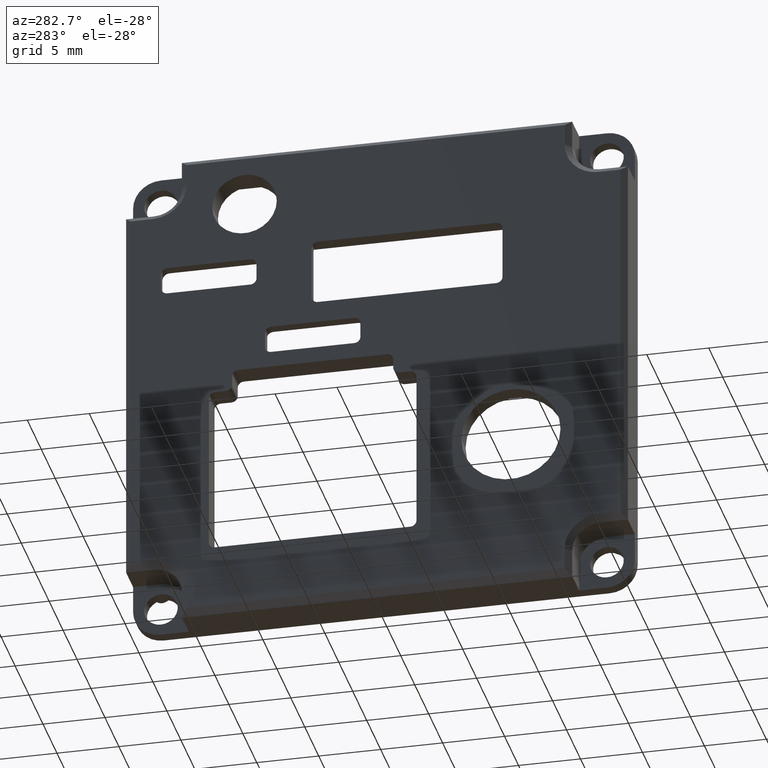
[diagram: clean part render]
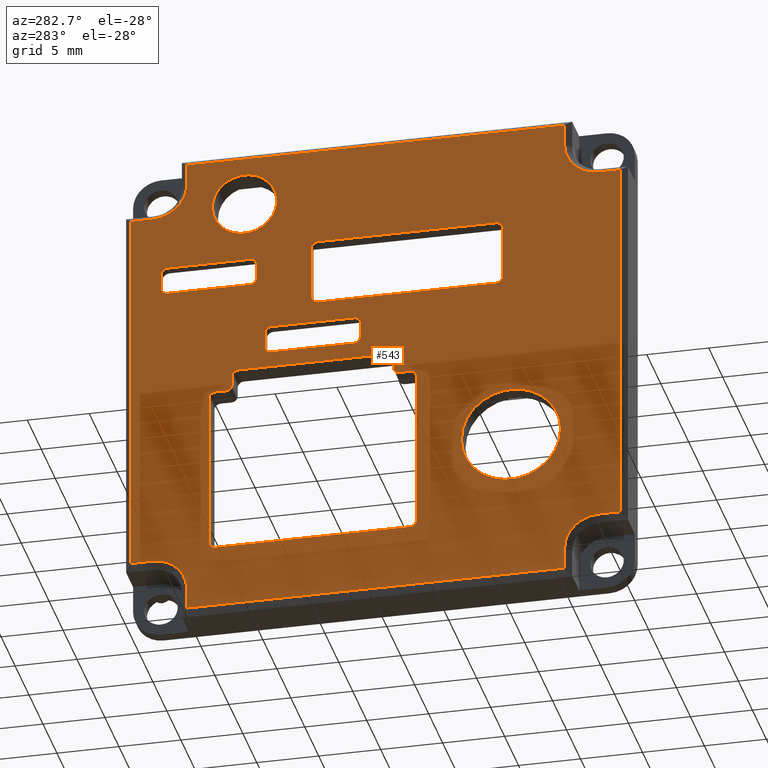
[diagram: same view with one face highlighted and labeled with its STEP entity id]
A machine part, auxiliary view. The second image highlights one B-rep face of the part: STEP entity #543.
In plain terms, the highlighted planar face has unit normal (-1, 0, 0).
Its self-contained STEP definition (entity closure, byte-faithful):
#543=ADVANCED_FACE('',(#1393,#1394,#1395,#1396,#1397,#1398,#968),#4072,.T.);
#968=FACE_OUTER_BOUND('',#1423,.F.);
#1393=FACE_BOUND('',#1417,.F.);
#1394=FACE_BOUND('',#1418,.F.);
#1395=FACE_BOUND('',#1419,.F.);
#1396=FACE_BOUND('',#1420,.F.);
#1397=FACE_BOUND('',#1421,.F.);
#1398=FACE_BOUND('',#1422,.F.);
#1417=EDGE_LOOP('',(#1866,#1867));
#1418=EDGE_LOOP('',(#1868,#1869,#1870,#1871,#1872,#1873,#1874,#1875));
#1419=EDGE_LOOP('',(#1876,#1877,#1878,#1879,#1880,#1881,#1882,#1883));
#1420=EDGE_LOOP('',(#1884,#1885,#1886,#1887,#1888,#1889,#1890,#1891));
#1421=EDGE_LOOP('',(#1892,#1893,#1894,#1895,#1896,#1897,#1898,#1899,#1900,
#1901,#1902,#1903,#1904,#1905,#1906,#1907));
#1422=EDGE_LOOP('',(#1908,#1909));
#1423=EDGE_LOOP('',(#1910,#1911,#1912,#1913,#1914,#1915,#1916,#1917,#1918,
#1919,#1920,#1921,#1922,#1923,#1924,#1925,#1926,#1927,#1928,#1929));
#1866=ORIENTED_EDGE('',*,*,#6767,.T.);
#1867=ORIENTED_EDGE('',*,*,#6766,.T.);
#1868=ORIENTED_EDGE('',*,*,#6789,.T.);
#1869=ORIENTED_EDGE('',*,*,#6790,.T.);
#1870=ORIENTED_EDGE('',*,*,#6791,.T.);
#1871=ORIENTED_EDGE('',*,*,#6792,.T.);
#1872=ORIENTED_EDGE('',*,*,#6793,.T.);
#1873=ORIENTED_EDGE('',*,*,#6794,.T.);
#1874=ORIENTED_EDGE('',*,*,#6795,.T.);
#1875=ORIENTED_EDGE('',*,*,#6788,.T.);
#1876=ORIENTED_EDGE('',*,*,#6845,.T.);
#1877=ORIENTED_EDGE('',*,*,#6846,.T.);
#1878=ORIENTED_EDGE('',*,*,#6847,.T.);
#1879=ORIENTED_EDGE('',*,*,#6848,.T.);
#1880=ORIENTED_EDGE('',*,*,#6849,.T.);
#1881=ORIENTED_EDGE('',*,*,#6850,.T.);
#1882=ORIENTED_EDGE('',*,*,#6851,.T.);
#1883=ORIENTED_EDGE('',*,*,#6844,.T.);
#1884=ORIENTED_EDGE('',*,*,#6869,.T.);
#1885=ORIENTED_EDGE('',*,*,#6870,.T.);
#1886=ORIENTED_EDGE('',*,*,#6871,.T.);
#1887=ORIENTED_EDGE('',*,*,#6872,.T.);
#1888=ORIENTED_EDGE('',*,*,#6873,.T.);
#1889=ORIENTED_EDGE('',*,*,#6874,.T.);
#1890=ORIENTED_EDGE('',*,*,#6875,.T.);
#1891=ORIENTED_EDGE('',*,*,#6868,.T.);
#1892=ORIENTED_EDGE('',*,*,#6814,.T.);
#1893=ORIENTED_EDGE('',*,*,#6815,.T.);
#1894=ORIENTED_EDGE('',*,*,#6816,.T.);
#1895=ORIENTED_EDGE('',*,*,#6817,.T.);
#1896=ORIENTED_EDGE('',*,*,#6818,.T.);
#1897=ORIENTED_EDGE('',*,*,#6819,.F.);
#1898=ORIENTED_EDGE('',*,*,#6820,.T.);
#1899=ORIENTED_EDGE('',*,*,#6821,.T.);
#1900=ORIENTED_EDGE('',*,*,#6822,.T.);
#1901=ORIENTED_EDGE('',*,*,#6823,.T.);
#1902=ORIENTED_EDGE('',*,*,#6824,.T.);
#1903=ORIENTED_EDGE('',*,*,#6825,.F.);
#1904=ORIENTED_EDGE('',*,*,#6826,.T.);
#1905=ORIENTED_EDGE('',*,*,#6827,.T.);
#1906=ORIENTED_EDGE('',*,*,#6812,.T.);
#1907=ORIENTED_EDGE('',*,*,#6813,.T.);
#1908=ORIENTED_EDGE('',*,*,#6771,.T.);
#1909=ORIENTED_EDGE('',*,*,#6770,.T.);
#1910=ORIENTED_EDGE('',*,*,#6706,.T.);
#1911=ORIENTED_EDGE('',*,*,#6708,.F.);
#1912=ORIENTED_EDGE('',*,*,#6709,.F.);
#1913=ORIENTED_EDGE('',*,*,#6711,.F.);
#1914=ORIENTED_EDGE('',*,*,#6713,.T.);
#1915=ORIENTED_EDGE('',*,*,#6712,.T.);
#1916=ORIENTED_EDGE('',*,*,#6714,.F.);
#1917=ORIENTED_EDGE('',*,*,#6715,.F.);
#1918=ORIENTED_EDGE('',*,*,#6717,.F.);
#1919=ORIENTED_EDGE('',*,*,#6719,.T.);
#1920=ORIENTED_EDGE('',*,*,#6718,.T.);
#1921=ORIENTED_EDGE('',*,*,#6720,.F.);
#1922=ORIENTED_EDGE('',*,*,#6721,.F.);
#1923=ORIENTED_EDGE('',*,*,#6723,.F.);
#1924=ORIENTED_EDGE('',*,*,#6725,.T.);
#1925=ORIENTED_EDGE('',*,*,#6724,.T.);
#1926=ORIENTED_EDGE('',*,*,#6726,.F.);
#1927=ORIENTED_EDGE('',*,*,#6727,.F.);
#1928=ORIENTED_EDGE('',*,*,#6729,.F.);
#1929=ORIENTED_EDGE('',*,*,#6707,.T.);
#4072=PLANE('',#10307);
#6306=CIRCLE('',#9989,2.75);
#6307=CIRCLE('',#9990,2.75);
#6308=CIRCLE('',#9991,2.75);
#6309=CIRCLE('',#9992,2.75);
#6310=CIRCLE('',#9993,2.75);
#6311=CIRCLE('',#9994,2.75);
#6312=CIRCLE('',#9995,2.75);
#6313=CIRCLE('',#9996,2.75);
#6322=CIRCLE('',#10005,4.);
#6323=CIRCLE('',#10006,4.);
#6326=CIRCLE('',#10009,2.60000000000002);
#6327=CIRCLE('',#10010,2.60000000000002);
#6336=CIRCLE('',#10019,0.5);
#6337=CIRCLE('',#10020,0.5);
#6338=CIRCLE('',#10021,0.5);
#6339=CIRCLE('',#10022,0.5);
#6348=CIRCLE('',#10031,0.5);
#6349=CIRCLE('',#10032,0.5);
#6350=CIRCLE('',#10033,0.5);
#6351=CIRCLE('',#10034,0.5);
#6352=CIRCLE('',#10035,0.5);
#6353=CIRCLE('',#10036,0.5);
#6354=CIRCLE('',#10037,0.5);
#6355=CIRCLE('',#10038,0.5);
#6364=CIRCLE('',#10047,0.5);
#6365=CIRCLE('',#10048,0.5);
#6366=CIRCLE('',#10049,0.5);
#6367=CIRCLE('',#10050,0.5);
#6376=CIRCLE('',#10059,0.5);
#6377=CIRCLE('',#10060,0.5);
#6378=CIRCLE('',#10061,0.5);
#6379=CIRCLE('',#10062,0.5);
#6706=EDGE_CURVE('',#9854,#9853,#6306,.T.);
#6707=EDGE_CURVE('',#9852,#9854,#6307,.T.);
#6708=EDGE_CURVE('',#9851,#9853,#7788,.T.);
#6709=EDGE_CURVE('',#9850,#9851,#7789,.T.);
#6711=EDGE_CURVE('',#9847,#9850,#7791,.T.);
#6712=EDGE_CURVE('',#9846,#9845,#6308,.T.);
#6713=EDGE_CURVE('',#9847,#9846,#6309,.T.);
#6714=EDGE_CURVE('',#9844,#9845,#7792,.T.);
#6715=EDGE_CURVE('',#9843,#9844,#7793,.T.);
#6717=EDGE_CURVE('',#9840,#9843,#7795,.T.);
#6718=EDGE_CURVE('',#9839,#9838,#6310,.T.);
#6719=EDGE_CURVE('',#9840,#9839,#6311,.T.);
#6720=EDGE_CURVE('',#9837,#9838,#7796,.T.);
#6721=EDGE_CURVE('',#9836,#9837,#7797,.T.);
#6723=EDGE_CURVE('',#9833,#9836,#7799,.T.);
#6724=EDGE_CURVE('',#9832,#9831,#6312,.T.);
#6725=EDGE_CURVE('',#9833,#9832,#6313,.T.);
#6726=EDGE_CURVE('',#9830,#9831,#7800,.T.);
#6727=EDGE_CURVE('',#9829,#9830,#7801,.T.);
#6729=EDGE_CURVE('',#9852,#9829,#7803,.T.);
#6766=EDGE_CURVE('',#9792,#9791,#6322,.T.);
#6767=EDGE_CURVE('',#9791,#9792,#6323,.T.);
#6770=EDGE_CURVE('',#9788,#9787,#6326,.T.);
#6771=EDGE_CURVE('',#9787,#9788,#6327,.T.);
#6788=EDGE_CURVE('',#9770,#9769,#6336,.T.);
#6789=EDGE_CURVE('',#9769,#9768,#7840,.T.);
#6790=EDGE_CURVE('',#9768,#9767,#6337,.T.);
#6791=EDGE_CURVE('',#9767,#9766,#7841,.T.);
#6792=EDGE_CURVE('',#9766,#9765,#6338,.T.);
#6793=EDGE_CURVE('',#9765,#9764,#7842,.T.);
#6794=EDGE_CURVE('',#9764,#9763,#6339,.T.);
#6795=EDGE_CURVE('',#9763,#9770,#7843,.T.);
#6812=EDGE_CURVE('',#9746,#9745,#7852,.T.);
#6813=EDGE_CURVE('',#9745,#9744,#6348,.T.);
#6814=EDGE_CURVE('',#9744,#9743,#7853,.T.);
#6815=EDGE_CURVE('',#9743,#9742,#6349,.T.);
#6816=EDGE_CURVE('',#9742,#9741,#7854,.T.);
#6817=EDGE_CURVE('',#9741,#9740,#6350,.T.);
#6818=EDGE_CURVE('',#9740,#9739,#7855,.T.);
#6819=EDGE_CURVE('',#9738,#9739,#6351,.T.);
#6820=EDGE_CURVE('',#9738,#9737,#7856,.T.);
#6821=EDGE_CURVE('',#9737,#9736,#6352,.T.);
#6822=EDGE_CURVE('',#9736,#9735,#7857,.T.);
#6823=EDGE_CURVE('',#9735,#9734,#6353,.T.);
#6824=EDGE_CURVE('',#9734,#9733,#7858,.T.);
#6825=EDGE_CURVE('',#9732,#9733,#6354,.T.);
#6826=EDGE_CURVE('',#9732,#9731,#7859,.T.);
#6827=EDGE_CURVE('',#9731,#9746,#6355,.T.);
#6844=EDGE_CURVE('',#9714,#9713,#6364,.T.);
#6845=EDGE_CURVE('',#9713,#9712,#7868,.T.);
#6846=EDGE_CURVE('',#9712,#9711,#6365,.T.);
#6847=EDGE_CURVE('',#9711,#9710,#7869,.T.);
#6848=EDGE_CURVE('',#9710,#9709,#6366,.T.);
#6849=EDGE_CURVE('',#9709,#9708,#7870,.T.);
#6850=EDGE_CURVE('',#9708,#9707,#6367,.T.);
#6851=EDGE_CURVE('',#9707,#9714,#7871,.T.);
#6868=EDGE_CURVE('',#9692,#9691,#6376,.T.);
#6869=EDGE_CURVE('',#9691,#9690,#7880,.T.);
#6870=EDGE_CURVE('',#9690,#9689,#6377,.T.);
#6871=EDGE_CURVE('',#9689,#9688,#7881,.T.);
#6872=EDGE_CURVE('',#9688,#9687,#6378,.T.);
#6873=EDGE_CURVE('',#9687,#9686,#7882,.T.);
#6874=EDGE_CURVE('',#9686,#9685,#6379,.T.);
#6875=EDGE_CURVE('',#9685,#9692,#7883,.T.);
#7788=LINE('',#13906,#8552);
#7789=LINE('',#13907,#8553);
#7791=LINE('',#13909,#8555);
#7792=LINE('',#13912,#8556);
#7793=LINE('',#13913,#8557);
#7795=LINE('',#13915,#8559);
#7796=LINE('',#13918,#8560);
#7797=LINE('',#13919,#8561);
#7799=LINE('',#13921,#8563);
#7800=LINE('',#13924,#8564);
#7801=LINE('',#13925,#8565);
#7803=LINE('',#13927,#8567);
#7840=LINE('',#13987,#8604);
#7841=LINE('',#13989,#8605);
#7842=LINE('',#13991,#8606);
#7843=LINE('',#13993,#8607);
#7852=LINE('',#14010,#8616);
#7853=LINE('',#14012,#8617);
#7854=LINE('',#14014,#8618);
#7855=LINE('',#14016,#8619);
#7856=LINE('',#14018,#8620);
#7857=LINE('',#14020,#8621);
#7858=LINE('',#14022,#8622);
#7859=LINE('',#14024,#8623);
#7868=LINE('',#14043,#8632);
#7869=LINE('',#14045,#8633);
#7870=LINE('',#14047,#8634);
#7871=LINE('',#14049,#8635);
#7880=LINE('',#14067,#8644);
#7881=LINE('',#14069,#8645);
#7882=LINE('',#14071,#8646);
#7883=LINE('',#14073,#8647);
#8552=VECTOR('',#10803,1.74999985754855);
#8553=VECTOR('',#10804,30.499999918845);
#8555=VECTOR('',#10806,1.75000001817986);
#8556=VECTOR('',#10811,1.74999636763292);
#8557=VECTOR('',#10812,30.4999962539143);
#8559=VECTOR('',#10814,1.74999998266961);
#8560=VECTOR('',#10819,1.75000006298982);
#8561=VECTOR('',#10820,30.5000001242829);
#8563=VECTOR('',#10822,1.75000001817964);
#8564=VECTOR('',#10827,1.74999636762564);
#8565=VECTOR('',#10828,30.4999962539125);
#8567=VECTOR('',#10830,1.74999998266912);
#8604=VECTOR('',#10913,1.24999999999917);
#8605=VECTOR('',#10916,6.7000000000008);
#8606=VECTOR('',#10919,1.25000000000009);
#8607=VECTOR('',#10922,6.69999999998796);
#8616=VECTOR('',#10947,12.849999999998);
#8617=VECTOR('',#10950,15.7499690119951);
#8618=VECTOR('',#10953,12.8499999999941);
#8619=VECTOR('',#10956,0.874984505972094);
#8620=VECTOR('',#10959,0.750000000022737);
#8621=VECTOR('',#10962,12.0000000000169);
#8622=VECTOR('',#10965,0.749999999999879);
#8623=VECTOR('',#10968,0.874984506017285);
#8632=VECTOR('',#10997,1.24999999999914);
#8633=VECTOR('',#11000,6.70000000000081);
#8634=VECTOR('',#11003,1.25000000000008);
#8635=VECTOR('',#11006,6.69999999998794);
#8644=VECTOR('',#11033,4.38000000000955);
#8645=VECTOR('',#11036,14.400000000008);
#8646=VECTOR('',#11039,4.38000000000477);
#8647=VECTOR('',#11042,14.3999999999942);
#9685=VERTEX_POINT('',#13424);
#9686=VERTEX_POINT('',#13425);
#9687=VERTEX_POINT('',#13426);
#9688=VERTEX_POINT('',#13427);
#9689=VERTEX_POINT('',#13428);
#9690=VERTEX_POINT('',#13429);
#9691=VERTEX_POINT('',#13430);
#9692=VERTEX_POINT('',#13431);
#9707=VERTEX_POINT('',#13446);
#9708=VERTEX_POINT('',#13447);
#9709=VERTEX_POINT('',#13448);
#9710=VERTEX_POINT('',#13449);
#9711=VERTEX_POINT('',#13450);
#9712=VERTEX_POINT('',#13451);
#9713=VERTEX_POINT('',#13452);
#9714=VERTEX_POINT('',#13453);
#9731=VERTEX_POINT('',#13470);
#9732=VERTEX_POINT('',#13471);
#9733=VERTEX_POINT('',#13472);
#9734=VERTEX_POINT('',#13473);
#9735=VERTEX_POINT('',#13474);
#9736=VERTEX_POINT('',#13475);
#9737=VERTEX_POINT('',#13476);
#9738=VERTEX_POINT('',#13477);
#9739=VERTEX_POINT('',#13478);
#9740=VERTEX_POINT('',#13479);
#9741=VERTEX_POINT('',#13480);
#9742=VERTEX_POINT('',#13481);
#9743=VERTEX_POINT('',#13482);
#9744=VERTEX_POINT('',#13483);
#9745=VERTEX_POINT('',#13484);
#9746=VERTEX_POINT('',#13485);
#9763=VERTEX_POINT('',#13502);
#9764=VERTEX_POINT('',#13503);
#9765=VERTEX_POINT('',#13504);
#9766=VERTEX_POINT('',#13505);
#9767=VERTEX_POINT('',#13506);
#9768=VERTEX_POINT('',#13507);
#9769=VERTEX_POINT('',#13508);
#9770=VERTEX_POINT('',#13509);
#9787=VERTEX_POINT('',#13526);
#9788=VERTEX_POINT('',#13527);
#9791=VERTEX_POINT('',#13530);
#9792=VERTEX_POINT('',#13531);
#9829=VERTEX_POINT('',#13568);
#9830=VERTEX_POINT('',#13569);
#9831=VERTEX_POINT('',#13570);
#9832=VERTEX_POINT('',#13571);
#9833=VERTEX_POINT('',#13572);
#9836=VERTEX_POINT('',#13575);
#9837=VERTEX_POINT('',#13576);
#9838=VERTEX_POINT('',#13577);
#9839=VERTEX_POINT('',#13578);
#9840=VERTEX_POINT('',#13579);
#9843=VERTEX_POINT('',#13582);
#9844=VERTEX_POINT('',#13583);
#9845=VERTEX_POINT('',#13584);
#9846=VERTEX_POINT('',#13585);
#9847=VERTEX_POINT('',#13586);
#9850=VERTEX_POINT('',#13589);
#9851=VERTEX_POINT('',#13590);
#9852=VERTEX_POINT('',#13591);
#9853=VERTEX_POINT('',#13592);
#9854=VERTEX_POINT('',#13593);
#9989=AXIS2_PLACEMENT_3D('',#13904,#10799,#10800);
#9990=AXIS2_PLACEMENT_3D('',#13905,#10801,#10802);
#9991=AXIS2_PLACEMENT_3D('',#13910,#10807,#10808);
#9992=AXIS2_PLACEMENT_3D('',#13911,#10809,#10810);
#9993=AXIS2_PLACEMENT_3D('',#13916,#10815,#10816);
#9994=AXIS2_PLACEMENT_3D('',#13917,#10817,#10818);
#9995=AXIS2_PLACEMENT_3D('',#13922,#10823,#10824);
#9996=AXIS2_PLACEMENT_3D('',#13923,#10825,#10826);
#10005=AXIS2_PLACEMENT_3D('',#13964,#10875,#10876);
#10006=AXIS2_PLACEMENT_3D('',#13965,#10877,#10878);
#10009=AXIS2_PLACEMENT_3D('',#13968,#10883,#10884);
#10010=AXIS2_PLACEMENT_3D('',#13969,#10885,#10886);
#10019=AXIS2_PLACEMENT_3D('',#13986,#10911,#10912);
#10020=AXIS2_PLACEMENT_3D('',#13988,#10914,#10915);
#10021=AXIS2_PLACEMENT_3D('',#13990,#10917,#10918);
#10022=AXIS2_PLACEMENT_3D('',#13992,#10920,#10921);
#10031=AXIS2_PLACEMENT_3D('',#14011,#10948,#10949);
#10032=AXIS2_PLACEMENT_3D('',#14013,#10951,#10952);
#10033=AXIS2_PLACEMENT_3D('',#14015,#10954,#10955);
#10034=AXIS2_PLACEMENT_3D('',#14017,#10957,#10958);
#10035=AXIS2_PLACEMENT_3D('',#14019,#10960,#10961);
#10036=AXIS2_PLACEMENT_3D('',#14021,#10963,#10964);
#10037=AXIS2_PLACEMENT_3D('',#14023,#10966,#10967);
#10038=AXIS2_PLACEMENT_3D('',#14025,#10969,#10970);
#10047=AXIS2_PLACEMENT_3D('',#14042,#10995,#10996);
#10048=AXIS2_PLACEMENT_3D('',#14044,#10998,#10999);
#10049=AXIS2_PLACEMENT_3D('',#14046,#11001,#11002);
#10050=AXIS2_PLACEMENT_3D('',#14048,#11004,#11005);
#10059=AXIS2_PLACEMENT_3D('',#14066,#11031,#11032);
#10060=AXIS2_PLACEMENT_3D('',#14068,#11034,#11035);
#10061=AXIS2_PLACEMENT_3D('',#14070,#11037,#11038);
#10062=AXIS2_PLACEMENT_3D('',#14072,#11040,#11041);
#10307=AXIS2_PLACEMENT_3D('',#14939,#12152,#12153);
#10799=DIRECTION('',(-1.,0.,0.));
#10800=DIRECTION('',(0.,0.574631814298951,-0.818412046585029));
#10801=DIRECTION('',(-1.,0.,0.));
#10802=DIRECTION('',(0.,1.,1.69496093927922E-09));
#10803=DIRECTION('',(0.,1.,-3.38049159062073E-09));
#10804=DIRECTION('',(0.,0.,1.));
#10806=DIRECTION('',(0.,-1.,3.38064252442274E-09));
#10807=DIRECTION('',(-1.,0.,0.));
#10808=DIRECTION('',(0.,0.818412043671064,0.574631818449128));
#10809=DIRECTION('',(-1.,0.,0.));
#10810=DIRECTION('',(0.,3.38546225396964E-09,1.));
#10811=DIRECTION('',(0.,-1.69035219497946E-09,1.));
#10812=DIRECTION('',(0.,-1.,0.));
#10814=DIRECTION('',(0.,1.6908217216138E-09,-1.));
#10815=DIRECTION('',(-1.,0.,0.));
#10816=DIRECTION('',(0.,-0.574631814298386,0.818412046585426));
#10817=DIRECTION('',(-1.,0.,0.));
#10818=DIRECTION('',(0.,-1.,-1.68933731649965E-09));
#10819=DIRECTION('',(0.,-1.,3.38195592681189E-09));
#10820=DIRECTION('',(0.,0.,-1.));
#10822=DIRECTION('',(0.,1.,-3.38175401626257E-09));
#10823=DIRECTION('',(-1.,0.,0.));
#10824=DIRECTION('',(0.,-0.818412043670597,-0.574631818449793));
#10825=DIRECTION('',(-1.,0.,0.));
#10826=DIRECTION('',(0.,-3.38388614099213E-09,-1.));
#10827=DIRECTION('',(0.,1.69091555503917E-09,-1.));
#10828=DIRECTION('',(0.,1.,0.));
#10830=DIRECTION('',(0.,-1.69054156476139E-09,1.));
#10875=DIRECTION('',(-1.,0.,0.));
#10876=DIRECTION('',(0.,1.,0.));
#10877=DIRECTION('',(-1.,0.,0.));
#10878=DIRECTION('',(0.,-1.,0.));
#10883=DIRECTION('',(-1.,0.,0.));
#10884=DIRECTION('',(0.,1.,0.));
#10885=DIRECTION('',(-1.,0.,0.));
#10886=DIRECTION('',(0.,-1.,0.));
#10911=DIRECTION('',(-1.,0.,0.));
#10912=DIRECTION('',(0.,0.,1.));
#10913=DIRECTION('',(0.,0.,-1.));
#10914=DIRECTION('',(-1.,0.,0.));
#10915=DIRECTION('',(0.,1.,0.));
#10916=DIRECTION('',(0.,-1.,0.));
#10917=DIRECTION('',(-1.,0.,0.));
#10918=DIRECTION('',(0.,0.,-1.));
#10919=DIRECTION('',(0.,0.,1.));
#10920=DIRECTION('',(-1.,0.,0.));
#10921=DIRECTION('',(0.,-1.,0.));
#10922=DIRECTION('',(0.,1.,0.));
#10947=DIRECTION('',(0.,0.,-1.));
#10948=DIRECTION('',(-1.,0.,0.));
#10949=DIRECTION('',(0.,1.,0.));
#10950=DIRECTION('',(0.,-1.,0.));
#10951=DIRECTION('',(-1.,0.,0.));
#10952=DIRECTION('',(0.,0.,-1.));
#10953=DIRECTION('',(0.,0.,1.));
#10954=DIRECTION('',(-1.,0.,0.));
#10955=DIRECTION('',(0.,-1.,0.));
#10956=DIRECTION('',(0.,1.,0.));
#10957=DIRECTION('',(-1.,0.,0.));
#10958=DIRECTION('',(0.,1.,0.));
#10959=DIRECTION('',(0.,0.,1.));
#10960=DIRECTION('',(-1.,0.,0.));
#10961=DIRECTION('',(0.,-1.,0.));
#10962=DIRECTION('',(0.,1.,0.));
#10963=DIRECTION('',(-1.,0.,0.));
#10964=DIRECTION('',(0.,0.,1.));
#10965=DIRECTION('',(0.,0.,-1.));
#10966=DIRECTION('',(-1.,0.,0.));
#10967=DIRECTION('',(0.,0.,-1.));
#10968=DIRECTION('',(0.,1.,0.));
#10969=DIRECTION('',(-1.,0.,0.));
#10970=DIRECTION('',(0.,0.,1.));
#10995=DIRECTION('',(-1.,0.,0.));
#10996=DIRECTION('',(0.,0.,1.));
#10997=DIRECTION('',(0.,0.,-1.));
#10998=DIRECTION('',(-1.,0.,0.));
#10999=DIRECTION('',(0.,1.,0.));
#11000=DIRECTION('',(0.,-1.,0.));
#11001=DIRECTION('',(-1.,0.,0.));
#11002=DIRECTION('',(0.,0.,-1.));
#11003=DIRECTION('',(0.,0.,1.));
#11004=DIRECTION('',(-1.,0.,0.));
#11005=DIRECTION('',(0.,-1.,0.));
#11006=DIRECTION('',(0.,1.,0.));
#11031=DIRECTION('',(-1.,0.,0.));
#11032=DIRECTION('',(0.,0.,1.));
#11033=DIRECTION('',(0.,0.,-1.));
#11034=DIRECTION('',(-1.,0.,0.));
#11035=DIRECTION('',(0.,1.,0.));
#11036=DIRECTION('',(0.,-1.,0.));
#11037=DIRECTION('',(-1.,0.,0.));
#11038=DIRECTION('',(0.,0.,-1.));
#11039=DIRECTION('',(0.,0.,1.));
#11040=DIRECTION('',(-1.,0.,0.));
#11041=DIRECTION('',(0.,-1.,0.));
#11042=DIRECTION('',(0.,1.,0.));
#12152=DIRECTION('',(-1.,0.,0.));
#12153=DIRECTION('',(0.,1.,0.));
#13424=CARTESIAN_POINT('',(-4.,-9.74000012146663,11.6846258038336));
#13425=CARTESIAN_POINT('',(-4.,-10.2400001214666,11.1846258038182));
#13426=CARTESIAN_POINT('',(-4.,-10.2400001214709,6.80462580381345));
#13427=CARTESIAN_POINT('',(-4.,-9.74000012146663,6.30462580383187));
#13428=CARTESIAN_POINT('',(-4.,4.65999987854141,6.30462580383179));
#13429=CARTESIAN_POINT('',(-4.,5.15999987853089,6.80462580383512));
#13430=CARTESIAN_POINT('',(-4.,5.15999987852788,11.1846258038461));
#13431=CARTESIAN_POINT('',(-4.,4.65999987852752,11.6846258038336));
#13446=CARTESIAN_POINT('',(-4.,1.72999987853194,4.54462580383158));
#13447=CARTESIAN_POINT('',(-4.,1.22999987853218,4.04462580383223));
#13448=CARTESIAN_POINT('',(-4.,1.22999987853056,2.79462580383215));
#13449=CARTESIAN_POINT('',(-4.,1.72999987853086,2.2946258038315));
#13450=CARTESIAN_POINT('',(-4.,8.42999987853167,2.29462580383559));
#13451=CARTESIAN_POINT('',(-4.,8.92999987853136,2.79462580383709));
#13452=CARTESIAN_POINT('',(-4.,8.92999987852012,4.04462580383773));
#13453=CARTESIAN_POINT('',(-4.,8.42999987851988,4.54462580383368));
#13470=CARTESIAN_POINT('',(-4.,12.9549843845285,-0.755374196166303));
#13471=CARTESIAN_POINT('',(-4.,12.0799998785112,-0.755374196164217));
#13472=CARTESIAN_POINT('',(-4.,11.5799998785195,-0.255374196148682));
#13473=CARTESIAN_POINT('',(-4.,11.5799998785407,0.494625803834983));
#13474=CARTESIAN_POINT('',(-4.,11.0799998785448,0.994625803834987));
#13475=CARTESIAN_POINT('',(-4.,-0.92000012147068,0.994625803833628));
#13476=CARTESIAN_POINT('',(-4.,-1.42000012147619,0.494625803833098));
#13477=CARTESIAN_POINT('',(-4.,-1.42000012146576,-0.255374196189109));
#13478=CARTESIAN_POINT('',(-4.,-1.92000012148134,-0.755374196183349));
#13479=CARTESIAN_POINT('',(-4.,-2.79498462745343,-0.755374196174026));
#13480=CARTESIAN_POINT('',(-4.,-3.29498462747282,-1.25537419618031));
#13481=CARTESIAN_POINT('',(-4.,-3.29498462747106,-14.1053741961668));
#13482=CARTESIAN_POINT('',(-4.,-2.79498462748254,-14.6053741961673));
#13483=CARTESIAN_POINT('',(-4.,12.9549843845125,-14.6053741961679));
#13484=CARTESIAN_POINT('',(-4.,13.454984384529,-14.1053741961685));
#13485=CARTESIAN_POINT('',(-4.,13.4549843845286,-1.25537419617047));
#13502=CARTESIAN_POINT('',(-4.,10.1119998785334,10.7446258038323));
#13503=CARTESIAN_POINT('',(-4.,9.61199987853366,10.244625803833));
#13504=CARTESIAN_POINT('',(-4.,9.61199987853204,8.99462580383287));
#13505=CARTESIAN_POINT('',(-4.,10.1119998785323,8.49462580383222));
#13506=CARTESIAN_POINT('',(-4.,16.8119998785331,8.49462580383632));
#13507=CARTESIAN_POINT('',(-4.,17.3119998785328,8.99462580383781));
#13508=CARTESIAN_POINT('',(-4.,17.3119998785216,10.2446258038385));
#13509=CARTESIAN_POINT('',(-4.,16.8119998785214,10.7446258038344));
#13526=CARTESIAN_POINT('',(-4.,7.97899351823563,15.7246257706876));
#13527=CARTESIAN_POINT('',(-4.,13.1789935182357,15.7246257706876));
#13530=CARTESIAN_POINT('',(-4.,-14.9219998377725,-7.30537417027289));
#13531=CARTESIAN_POINT('',(-4.,-6.92199983777246,-7.30537417027289));
#13568=CARTESIAN_POINT('',(-4.,-15.2499987846991,19.7499987994874));
#13569=CARTESIAN_POINT('',(-4.,15.2499999666012,19.7499963021001));
#13570=CARTESIAN_POINT('',(-4.,15.2499999695609,17.9999999344762));
#13571=CARTESIAN_POINT('',(-4.,15.7493668494666,16.4197624383864));
#13572=CARTESIAN_POINT('',(-4.,17.999999960255,15.2499999391237));
#13575=CARTESIAN_POINT('',(-4.,19.7500000198635,15.2499999746353));
#13576=CARTESIAN_POINT('',(-4.,19.7500001027215,-15.2500000667901));
#13577=CARTESIAN_POINT('',(-3.99999999999999,18.000000039731,-15.2500000608719));
#13578=CARTESIAN_POINT('',(-4.,16.4197625411137,-15.7493669327613));
#13579=CARTESIAN_POINT('',(-4.,15.2500000304346,-18.0000000655169));
#13582=CARTESIAN_POINT('',(-3.99999999999999,15.2499987847005,-19.7499987994927));
#13583=CARTESIAN_POINT('',(-3.99999999999999,-15.2499999666021,-19.7499963021055));
#13584=CARTESIAN_POINT('',(-4.,-15.2499999695613,-17.9999999344697));
#13585=CARTESIAN_POINT('',(-4.,-15.749366849466,-16.4197624383937));
#13586=CARTESIAN_POINT('',(-4.,-17.9999999602514,-15.2499999391278));
#13589=CARTESIAN_POINT('',(-4.,-19.7499999513797,-15.2499999061582));
#13590=CARTESIAN_POINT('',(-4.,-19.7499998972744,15.2500000667876));
#13591=CARTESIAN_POINT('',(-4.,-15.2500000304344,18.0000000655176));
#13592=CARTESIAN_POINT('',(-4.,-18.0000000397161,15.2500000608673));
#13593=CARTESIAN_POINT('',(-4.,-16.4197625411121,15.7493669327587));
#13904=CARTESIAN_POINT('',(-4.,-18.0000000304342,18.0000000608675));
#13905=CARTESIAN_POINT('',(-4.,-18.0000000304342,18.0000000608675));
#13906=CARTESIAN_POINT('',(-4.,-19.74999989727,15.2500000667831));
#13907=CARTESIAN_POINT('',(-4.,-19.7499998972767,-15.2499998520552));
#13909=CARTESIAN_POINT('',(-4.,-17.9999999602514,-15.2499999391258));
#13910=CARTESIAN_POINT('',(-3.99999999999999,-17.9999999695614,-17.9999999391288));
#13911=CARTESIAN_POINT('',(-3.99999999999999,-17.9999999695614,-17.9999999391288));
#13912=CARTESIAN_POINT('',(-3.99999999999999,-15.2499999666032,-19.7499963021065));
#13913=CARTESIAN_POINT('',(-3.99999999999999,15.2499962873127,-19.7499963021049));
#13915=CARTESIAN_POINT('',(-4.,15.2500000304354,-18.0000000655169));
#13916=CARTESIAN_POINT('',(-3.99999999999999,18.0000000304342,-18.0000000608712));
#13917=CARTESIAN_POINT('',(-3.99999999999999,18.0000000304342,-18.0000000608712));
#13918=CARTESIAN_POINT('',(-4.,19.7500001027221,-15.2500000667907));
#13919=CARTESIAN_POINT('',(-4.,19.7500001027213,15.2500000574931));
#13921=CARTESIAN_POINT('',(-4.,17.999999960255,15.2499999391246));
#13922=CARTESIAN_POINT('',(-4.,17.9999999695607,17.9999999391233));
#13923=CARTESIAN_POINT('',(-4.,17.9999999695607,17.9999999391233));
#13924=CARTESIAN_POINT('',(-4.,15.2499999666019,19.7499963021008));
#13925=CARTESIAN_POINT('',(-4.,-15.2499962873115,19.7499963020998));
#13927=CARTESIAN_POINT('',(-4.,-15.2500000304345,18.0000000655121));
#13964=CARTESIAN_POINT('',(-4.,-10.9219998377725,-7.30537417027289));
#13965=CARTESIAN_POINT('',(-4.,-10.9219998377725,-7.30537417027289));
#13968=CARTESIAN_POINT('',(-4.,10.5789935182357,15.7246257706876));
#13969=CARTESIAN_POINT('',(-4.,10.5789935182357,15.7246257706876));
#13986=CARTESIAN_POINT('',(-4.,16.8119998785216,10.2446258038355));
#13987=CARTESIAN_POINT('',(-4.,17.3119998785216,10.24462580384));
#13988=CARTESIAN_POINT('',(-4.,16.8119998785328,8.99462580383632));
#13989=CARTESIAN_POINT('',(-4.,16.8119998785331,8.49462580383632));
#13990=CARTESIAN_POINT('',(-4.,10.111999878532,8.99462580383222));
#13991=CARTESIAN_POINT('',(-4.,9.61199987853205,8.99462580383287));
#13992=CARTESIAN_POINT('',(-4.,10.1119998785337,10.2446258038323));
#13993=CARTESIAN_POINT('',(-4.,10.1119998785334,10.7446258038323));
#14010=CARTESIAN_POINT('',(-4.,13.4549843845286,-1.25537419617048));
#14011=CARTESIAN_POINT('',(-4.,12.954984384529,-14.1053741961685));
#14012=CARTESIAN_POINT('',(-4.,12.9549843845125,-14.6053741961677));
#14013=CARTESIAN_POINT('',(-4.,-2.79498462747106,-14.1053741961669));
#14014=CARTESIAN_POINT('',(-4.,-3.29498462747106,-14.1053741961669));
#14015=CARTESIAN_POINT('',(-4.,-2.79498462747281,-1.25537419617274));
#14016=CARTESIAN_POINT('',(-4.,-2.79498462745343,-0.755374196174672));
#14017=CARTESIAN_POINT('',(-4.,-1.92000012146576,-0.255374196189109));
#14018=CARTESIAN_POINT('',(-4.,-1.42000012146577,-0.25537419618911));
#14019=CARTESIAN_POINT('',(-4.,-0.920000121476192,0.494625803833628));
#14020=CARTESIAN_POINT('',(-4.,-0.920000121476196,0.994625803833628));
#14021=CARTESIAN_POINT('',(-4.,11.0799998785407,0.494625803834987));
#14022=CARTESIAN_POINT('',(-4.,11.5799998785407,0.494625803834974));
#14023=CARTESIAN_POINT('',(-4.,12.0799998785195,-0.255374196164899));
#14024=CARTESIAN_POINT('',(-4.,12.0799998785112,-0.755374196163875));
#14025=CARTESIAN_POINT('',(-4.,12.9549843845286,-1.25537419617047));
#14042=CARTESIAN_POINT('',(-4.,8.42999987852012,4.04462580383474));
#14043=CARTESIAN_POINT('',(-4.,8.92999987852012,4.04462580383922));
#14044=CARTESIAN_POINT('',(-4.,8.42999987853136,2.79462580383559));
#14045=CARTESIAN_POINT('',(-4.,8.42999987853166,2.29462580383559));
#14046=CARTESIAN_POINT('',(-4.,1.72999987853056,2.7946258038315));
#14047=CARTESIAN_POINT('',(-4.,1.22999987853056,2.79462580383215));
#14048=CARTESIAN_POINT('',(-4.,1.72999987853218,4.04462580383158));
#14049=CARTESIAN_POINT('',(-4.,1.72999987853194,4.54462580383157));
#14066=CARTESIAN_POINT('',(-4.,4.65999987852689,11.1846258038341));
#14067=CARTESIAN_POINT('',(-4.,5.15999987852837,11.1846258038521));
#14068=CARTESIAN_POINT('',(-4.,4.65999987853076,6.80462580383141));
#14069=CARTESIAN_POINT('',(-4.,4.65999987854141,6.30462580383198));
#14070=CARTESIAN_POINT('',(-4.,-9.74000012147061,6.80462580383165));
#14071=CARTESIAN_POINT('',(-4.,-10.2400001214711,6.80462580381345));
#14072=CARTESIAN_POINT('',(-4.,-9.7400001214651,11.1846258038344));
#14073=CARTESIAN_POINT('',(-4.,-9.74000012146664,11.6846258038332));
#14939=CARTESIAN_POINT('',(-4.,-20.2527101206052,20.2527065252184));